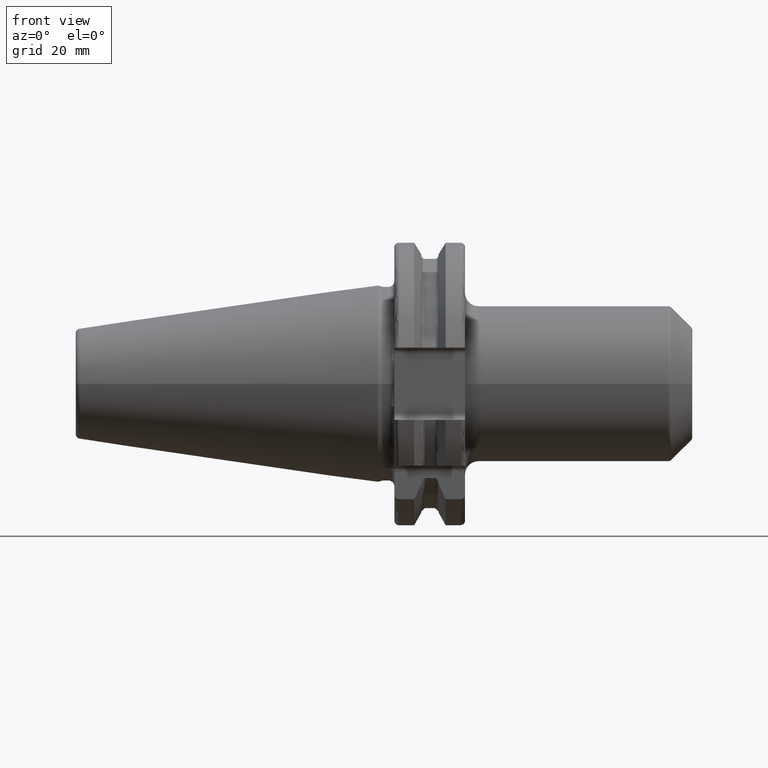
[diagram: clean part render]
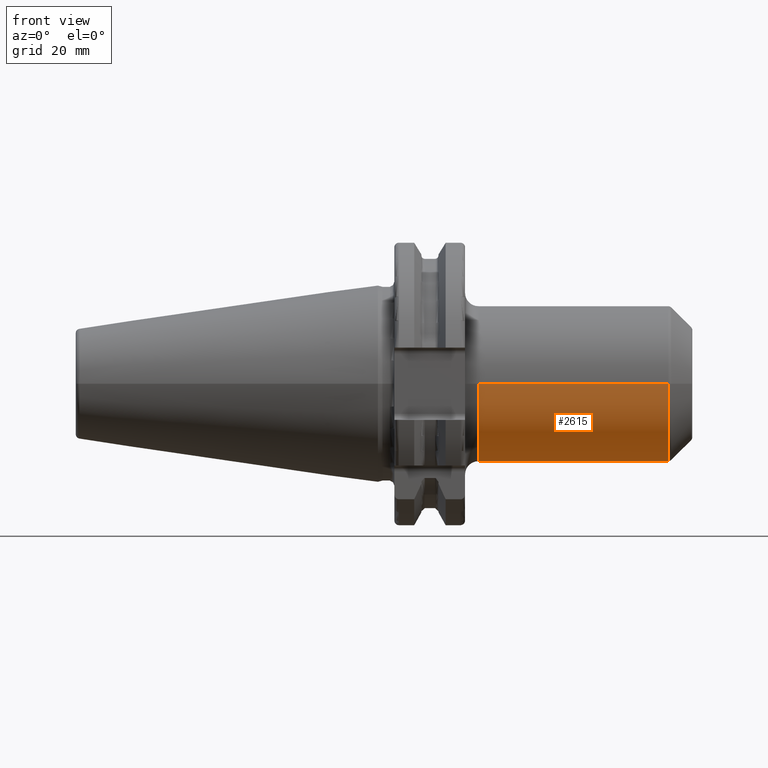
[diagram: same view with one face highlighted and labeled with its STEP entity id]
A machine part, front view. The second image highlights one B-rep face of the part: STEP entity #2615.
In plain terms, the highlighted cylindrical surface (partial cylindrical patch) has radius 17.5 mm, axis along (1, 0, 0).
Its self-contained STEP definition (entity closure, byte-faithful):
#968=CARTESIAN_POINT('',(6.458578643763E1,0.E0,0.E0));
#969=DIRECTION('',(-1.E0,0.E0,0.E0));
#970=DIRECTION('',(0.E0,1.E0,0.E0));
#971=AXIS2_PLACEMENT_3D('',#968,#969,#970);
#973=DIRECTION('',(-1.E0,0.E0,9.935061143343E-13));
#974=VECTOR('',#973,4.253578643763E1);
#975=CARTESIAN_POINT('',(6.458578643763E1,1.75E1,-3.958605367860E-11));
#976=LINE('',#975,#974);
#977=CARTESIAN_POINT('',(2.205E1,0.E0,0.E0));
#978=DIRECTION('',(1.E0,0.E0,0.E0));
#979=DIRECTION('',(0.E0,-1.E0,0.E0));
#980=AXIS2_PLACEMENT_3D('',#977,#978,#979);
#982=DIRECTION('',(-1.E0,0.E0,-9.934534069938E-13));
#983=VECTOR('',#982,4.253578643763E1);
#984=CARTESIAN_POINT('',(6.458578643763E1,-1.75E1,3.958136413921E-11));
#985=LINE('',#984,#983);
#1552=CARTESIAN_POINT('',(2.205E1,-1.75E1,0.E0));
#1553=CARTESIAN_POINT('',(2.205E1,1.75E1,0.E0));
#1554=VERTEX_POINT('',#1552);
#1555=VERTEX_POINT('',#1553);
#1564=CARTESIAN_POINT('',(6.458578643763E1,1.75E1,0.E0));
#1565=CARTESIAN_POINT('',(6.458578643763E1,-1.75E1,0.E0));
#1566=VERTEX_POINT('',#1564);
#1567=VERTEX_POINT('',#1565);
#2604=CARTESIAN_POINT('',(1.65025E1,0.E0,0.E0));
#2605=DIRECTION('',(1.E0,0.E0,0.E0));
#2606=DIRECTION('',(0.E0,-1.E0,0.E0));
#2607=AXIS2_PLACEMENT_3D('',#2604,#2605,#2606);
#2608=CYLINDRICAL_SURFACE('',#2607,1.75E1);
#2609=ORIENTED_EDGE('',*,*,#2595,.F.);
#2610=ORIENTED_EDGE('',*,*,#2570,.T.);
#2611=ORIENTED_EDGE('',*,*,#2540,.F.);
#2612=ORIENTED_EDGE('',*,*,#2567,.F.);
#2613=EDGE_LOOP('',(#2609,#2610,#2611,#2612));
#2614=FACE_OUTER_BOUND('',#2613,.F.);
#2615=ADVANCED_FACE('',(#2614),#2608,.T.);
#972=CIRCLE('',#971,1.75E1);
#981=CIRCLE('',#980,1.75E1);
#2540=EDGE_CURVE('',#1554,#1555,#981,.T.);
#2567=EDGE_CURVE('',#1567,#1554,#985,.T.);
#2570=EDGE_CURVE('',#1566,#1555,#976,.T.);
#2595=EDGE_CURVE('',#1566,#1567,#972,.T.);